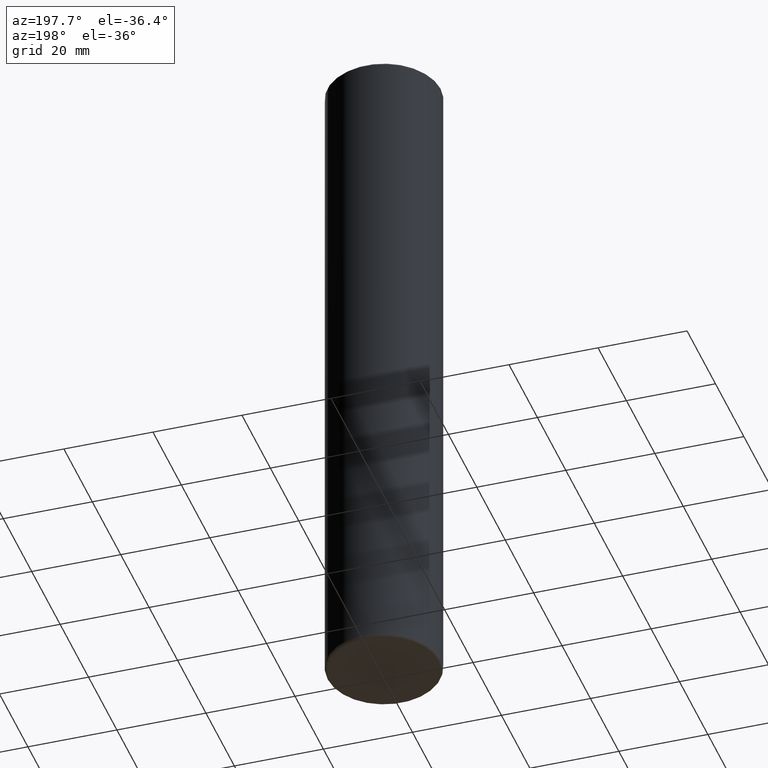
[diagram: clean part render]
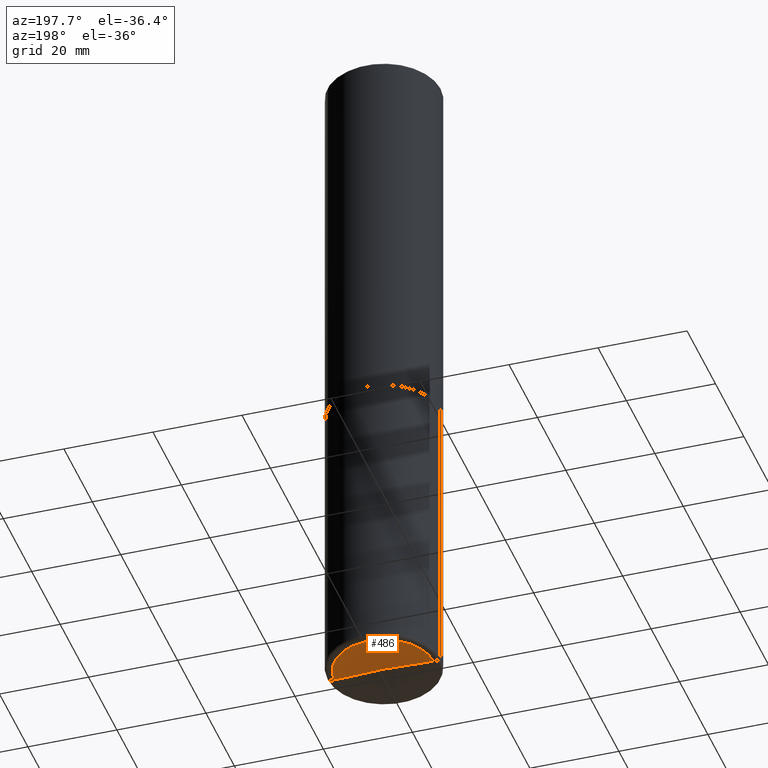
[diagram: same view with one face highlighted and labeled with its STEP entity id]
A machine part, auxiliary view. The second image highlights one B-rep face of the part: STEP entity #486.
In plain terms, the highlighted conical surface has half-angle 88 deg.
Its self-contained STEP definition (entity closure, byte-faithful):
#7 = DIRECTION ( 'NONE',  ( -2.445468806185136597E-29, 3.491481338843145583E-15, 1.000000000000000000 ) ) ;
#26 = VECTOR ( 'NONE', #474, 39.37007874015748143 ) ;
#51 = CARTESIAN_POINT ( 'NONE',  ( -0.4377382039350493637, -1.789120346210978746E-14, -5.999720740230696236 ) ) ;
#55 = EDGE_CURVE ( 'NONE', #97, #487, #202, .T. ) ;
#63 = EDGE_CURVE ( 'NONE', #487, #159, #246, .T. ) ;
#84 = EDGE_LOOP ( 'NONE', ( #160, #342, #123 ) ) ;
#89 = DIRECTION ( 'NONE',  ( 1.000000000000000000, -6.982962677686268288E-15, 0.000000000000000000 ) ) ;
#97 = VERTEX_POINT ( 'NONE', #205 ) ;
#104 = CARTESIAN_POINT ( 'NONE',  ( -0.4377382039350493637, -1.789120346210978746E-14, -5.999720740230696236 ) ) ;
#123 = ORIENTED_EDGE ( 'NONE', *, *, #63, .F. ) ;
#155 = VECTOR ( 'NONE', #351, 39.37007874015748143 ) ;
#159 = VERTEX_POINT ( 'NONE', #51 ) ;
#160 = ORIENTED_EDGE ( 'NONE', *, *, #55, .F. ) ;
#161 = DIRECTION ( 'NONE',  ( -1.000000000000000000, 6.982962677686268288E-15, 0.000000000000000000 ) ) ;
#202 = LINE ( 'NONE', #308, #155 ) ;
#205 = CARTESIAN_POINT ( 'NONE',  ( 1.464166226079622307E-28, -2.088464020784759386E-14, -5.984434585313348265 ) ) ;
#246 = CIRCLE ( 'NONE', #326, 0.4377382039350493637 ) ;
#255 = CONICAL_SURFACE ( 'NONE', #302, 0.4377382039350493637, 1.535889741755009474 ) ;
#302 = AXIS2_PLACEMENT_3D ( 'NONE', #414, #303, #161 ) ;
#303 = DIRECTION ( 'NONE',  ( 2.445468806185136597E-29, -3.491481338843145583E-15, -1.000000000000000000 ) ) ;
#308 = CARTESIAN_POINT ( 'NONE',  ( 0.4377382039350493637, -2.395101507443017040E-14, -5.999720740230696236 ) ) ;
#322 = EDGE_CURVE ( 'NONE', #97, #159, #471, .T. ) ;
#326 = AXIS2_PLACEMENT_3D ( 'NONE', #423, #7, #89 ) ;
#336 = CARTESIAN_POINT ( 'NONE',  ( 0.4377382039350493637, -2.395101507443017040E-14, -5.999720740230696236 ) ) ;
#340 = FACE_OUTER_BOUND ( 'NONE', #84, .T. ) ;
#342 = ORIENTED_EDGE ( 'NONE', *, *, #322, .T. ) ;
#351 = DIRECTION ( 'NONE',  ( 0.9993908270190957621, -6.978169709227544643E-15, -0.03489949670250152430 ) ) ;
#414 = CARTESIAN_POINT ( 'NONE',  ( 1.467212991605616561E-28, -2.094791300278565904E-14, -5.999720740230696236 ) ) ;
#423 = CARTESIAN_POINT ( 'NONE',  ( 1.467212991605616561E-28, -2.094791300278565904E-14, -5.999720740230696236 ) ) ;
#471 = LINE ( 'NONE', #104, #26 ) ;
#474 = DIRECTION ( 'NONE',  ( -0.9993908270190957621, 6.856857904024554893E-15, -0.03489949670250152430 ) ) ;
#486 = ADVANCED_FACE ( 'NONE', ( #340 ), #255, .F. ) ;
#487 = VERTEX_POINT ( 'NONE', #336 ) ;